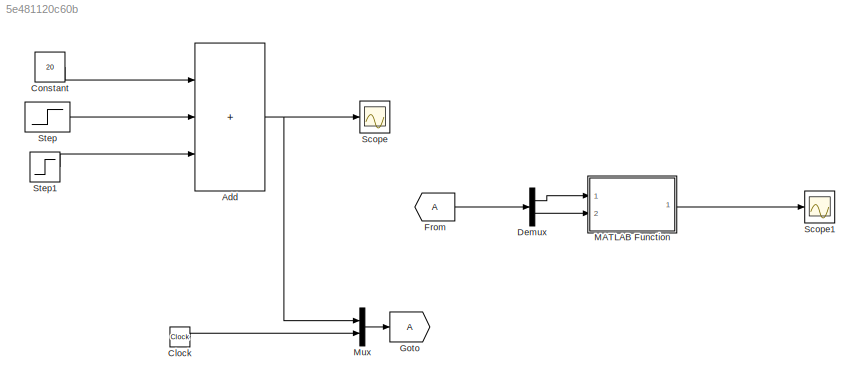
MODEL slx_5e481120c60b
KIND model
CONFIG AbsTol = auto
CONFIG EnableMultiTasking = off
CONFIG FixedStep = auto
CONFIG MaxStep = auto
CONFIG MinStep = auto
CONFIG RelTol = 1e-3
CONFIG SampleTimeConstraint = Unconstrained
CONFIG SolverName = VariableStepAuto
CONFIG StartTime = 0.0
CONFIG StopTime = 0.3
BLOCK [Sum] Add
  IconShape = rectangular
  Inputs = +++
  Ports = [3, 1]
BLOCK [Clock] Clock
  Decimation = 1
BLOCK [Constant] Constant
  SampleTime = 1e-6
  Value = 20
BLOCK [Demux] Demux
  Outputs = 2
  Ports = [1, 2]
BLOCK [From] From
BLOCK [Goto] Goto
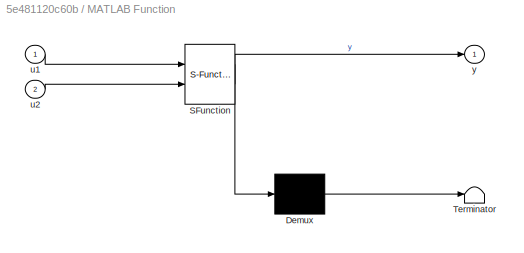
BLOCK [SubSystem] MATLAB Function
  ErrorFcn = Stateflow.Translate.translate
  PermitHierarchicalResolution = ExplicitOnly
  Ports = [2, 1]
  RequestExecContextInheritance = off
  SFBlockType = MATLAB Function
  TreatAsAtomicUnit = on
BLOCK [Demux] MATLAB Function/ Demux 
  Outputs = 1
  Ports = [1, 1]
BLOCK [S-Function] MATLAB Function/ SFunction 
  EnableBusSupport = on
  FunctionName = sf_sfun
  PortCounts = [2 2]
  Ports = [2, 2]
  SFcnIsStateOwnerBlock = off
  SFunctionDeploymentMode = off
  Tag = Stateflow S-Function 2
BLOCK [Terminator] MATLAB Function/ Terminator 
BLOCK [Inport] MATLAB Function/u1
BLOCK [Inport] MATLAB Function/u2
  Port = 2
BLOCK [Outport] MATLAB Function/y
BLOCK [Mux] Mux
  DisplayOption = bar
  Inputs = 2
  Ports = [2, 1]
BLOCK [Scope] Scope
  Floating = off
  NumInputPorts = 1
  Ports = [1]
  ScopeSpecificationString = Simulink.scopes.TimeScopeBlockCfg('CurrentConfiguration', extmgr.ConfigurationSet(extmgr.Configuration('Core','General UI',true),extmgr.Configuration('Core','Source UI',true),extmgr.Configuration('Sources','WiredSimulink',true),extmgr.Configuration('Visuals','Time Domain',true,'SerializedDisplays',{struct('MinYLimReal','15.00000','MaxYLimReal','65.00000','YLabelReal','','MinYLimMag','15.00000','Ma...<+1329ch>
BLOCK [Scope] Scope1
  Floating = off
  NumInputPorts = 1
  Ports = [1]
  ScopeSpecificationString = Simulink.scopes.TimeScopeBlockCfg('CurrentConfiguration', extmgr.ConfigurationSet(extmgr.Configuration('Core','General UI',true),extmgr.Configuration('Core','Source UI',true),extmgr.Configuration('Sources','WiredSimulink',true,'DataLoggingVariableName','ScopeData1'),extmgr.Configuration('Visuals','Time Domain',true,'SerializedDisplays',{struct('MinYLimReal','-1.25','MaxYLimReal','1.25','YLabelReal...<+1385ch>
BLOCK [Step] Step
  After = 20
  SampleTime = 1e-6
  Time = 0.1
BLOCK [Step] Step1
  After = 20
  SampleTime = 1e-6
  Time = 0.2
NET Add:1 -> Mux:1, Scope:1
LINE Clock:1 -> Mux:2
LINE Constant:1 -> Add:1
LINE Demux:1 -> MATLAB Function:1
LINE Demux:2 -> MATLAB Function:2
LINE From:1 -> Demux:1
LINE MATLAB Function:1 -> Scope1:1
LINE Mux:1 -> Goto:1
LINE Step1:1 -> Add:3
LINE Step:1 -> Add:2
note: NET lines group one-source signal fan-out (src -> all destinations, sorted); 1:1 wires keep LINE
CHART MATLAB Function states=1 transitions=1
  STATE_LABEL 'eML_blk_kernel()'
  STATE_LABEL 'SCRIPT:\nfunction y = fcn(u1,u2)\n\ny = sin(2*pi*u1*u2);\nend'
CHART  states=0 transitions=0
